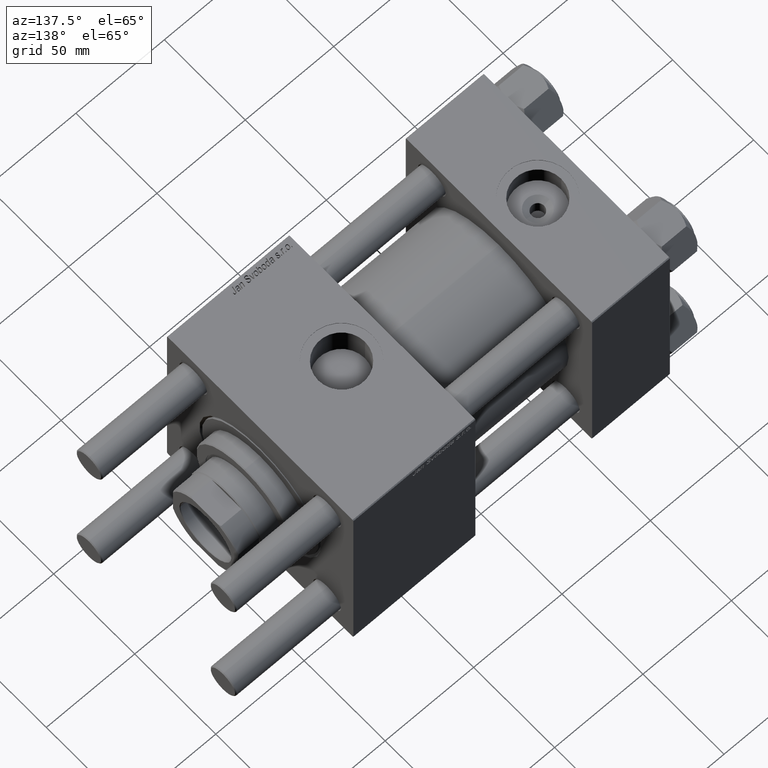
[diagram: clean part render]
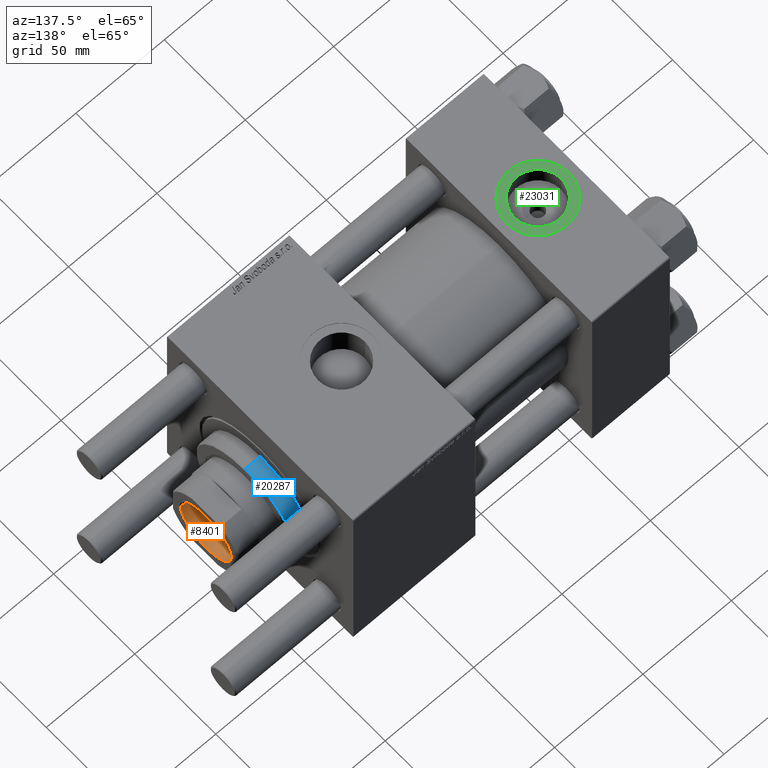
[diagram: same view with three faces highlighted in distinct colors, each labeled with its STEP entity id]
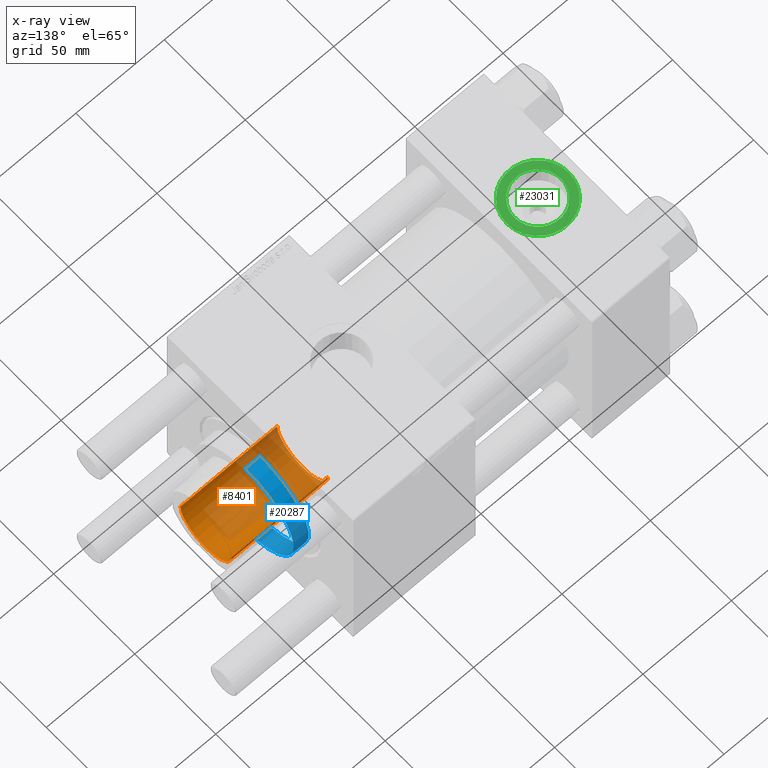
[diagram: x-ray of the same camera — body ghosted, the three highlighted faces saturated]
A machine part, auxiliary view with three faces highlighted in distinct colors.
The next image is the same camera in x-ray (body ghosted, the three faces saturated) — at least one of them is partly hidden behind the body in this view.
Their STEP definitions:

[orange] entity #8401 — the highlighted cylindrical surface (partial cylindrical patch) has radius 15.75 mm, axis along (1, 0, 0).
#65 = EDGE_CURVE ( 'NONE', #55164, #40417, #14133, .T. ) ;
#2132 = EDGE_CURVE ( 'NONE', #55445, #10898, #7767, .T. ) ;
#5208 = CARTESIAN_POINT ( 'NONE',  ( -15.74999999999999289, 1.928818708657080556E-15, 165.6999999999999886 ) ) ;
#6679 = LINE ( 'NONE', #46539, #9876 ) ;
#6819 = CARTESIAN_POINT ( 'NONE',  ( -15.74999999999999289, 1.928818708657080556E-15, 166.0000000000000000 ) ) ;
#7767 = CIRCLE ( 'NONE', #21579, 15.74999999999999289 ) ;
#7847 = DIRECTION ( 'NONE',  ( 1.000000000000000000, 0.000000000000000000, 0.000000000000000000 ) ) ;
#8141 = CYLINDRICAL_SURFACE ( 'NONE', #53975, 15.74999999999999289 ) ;
#8401 = ADVANCED_FACE ( 'NONE', ( #13056 ), #8141, .F. ) ;
#9876 = VECTOR ( 'NONE', #37022, 1000.000000000000000 ) ;
#10898 = VERTEX_POINT ( 'NONE', #5208 ) ;
#13056 = FACE_OUTER_BOUND ( 'NONE', #30278, .T. ) ;
#13132 = ORIENTED_EDGE ( 'NONE', *, *, #65, .F. ) ;
#14133 = CIRCLE ( 'NONE', #41776, 15.74999999999998934 ) ;
#21220 = DIRECTION ( 'NONE',  ( 1.000000000000000000, 0.000000000000000000, 0.000000000000000000 ) ) ;
#21579 = AXIS2_PLACEMENT_3D ( 'NONE', #28323, #54380, #31542 ) ;
#23010 = ORIENTED_EDGE ( 'NONE', *, *, #2132, .T. ) ;
#25259 = CARTESIAN_POINT ( 'NONE',  ( 0.000000000000000000, 0.000000000000000000, 111.0000000000000000 ) ) ;
#25723 = CARTESIAN_POINT ( 'NONE',  ( 15.74999999999998934, 0.000000000000000000, 111.0000000000000000 ) ) ;
#25746 = CARTESIAN_POINT ( 'NONE',  ( 0.000000000000000000, 0.000000000000000000, 166.0000000000000000 ) ) ;
#26228 = CARTESIAN_POINT ( 'NONE',  ( 15.74999999999999289, 0.000000000000000000, 165.6999999999999886 ) ) ;
#26571 = CARTESIAN_POINT ( 'NONE',  ( -15.74999999999998934, 1.928818708657080161E-15, 111.0000000000000000 ) ) ;
#28323 = CARTESIAN_POINT ( 'NONE',  ( 0.000000000000000000, 0.000000000000000000, 165.6999999999999886 ) ) ;
#30278 = EDGE_LOOP ( 'NONE', ( #39088, #13132, #37031, #23010 ) ) ;
#31542 = DIRECTION ( 'NONE',  ( 1.000000000000000000, 0.000000000000000000, 0.000000000000000000 ) ) ;
#34219 = DIRECTION ( 'NONE',  ( -0.000000000000000000, -0.000000000000000000, 1.000000000000000000 ) ) ;
#35929 = EDGE_CURVE ( 'NONE', #55164, #55445, #6679, .T. ) ;
#37022 = DIRECTION ( 'NONE',  ( -0.000000000000000000, -0.000000000000000000, 1.000000000000000000 ) ) ;
#37031 = ORIENTED_EDGE ( 'NONE', *, *, #35929, .T. ) ;
#38009 = DIRECTION ( 'NONE',  ( -0.000000000000000000, -0.000000000000000000, 1.000000000000000000 ) ) ;
#39088 = ORIENTED_EDGE ( 'NONE', *, *, #53069, .F. ) ;
#40417 = VERTEX_POINT ( 'NONE', #26571 ) ;
#41776 = AXIS2_PLACEMENT_3D ( 'NONE', #25259, #34219, #21220 ) ;
#46539 = CARTESIAN_POINT ( 'NONE',  ( 15.74999999999999289, 0.000000000000000000, 166.0000000000000000 ) ) ;
#51783 = DIRECTION ( 'NONE',  ( -0.000000000000000000, -0.000000000000000000, 1.000000000000000000 ) ) ;
#51793 = VECTOR ( 'NONE', #38009, 1000.000000000000000 ) ;
#53069 = EDGE_CURVE ( 'NONE', #40417, #10898, #55375, .T. ) ;
#53975 = AXIS2_PLACEMENT_3D ( 'NONE', #25746, #51783, #7847 ) ;
#54380 = DIRECTION ( 'NONE',  ( 0.000000000000000000, 0.000000000000000000, 1.000000000000000000 ) ) ;
#55164 = VERTEX_POINT ( 'NONE', #25723 ) ;
#55375 = LINE ( 'NONE', #6819, #51793 ) ;
#55445 = VERTEX_POINT ( 'NONE', #26228 ) ;

[blue] entity #20287 — the highlighted cylindrical surface (partial cylindrical patch) has radius 30 mm, axis along (-1, -0, 0).
#580 = CARTESIAN_POINT ( 'NONE',  ( -30.00000000000000000, 0.000000000000000000, 37.69999999999999574 ) ) ;
#775 = VERTEX_POINT ( 'NONE', #22215 ) ;
#1710 = CARTESIAN_POINT ( 'NONE',  ( 30.00000000000000000, 3.673940397442059178E-15, 37.69999999999999574 ) ) ;
#1751 = EDGE_CURVE ( 'NONE', #53515, #28008, #32663, .T. ) ;
#5035 = DIRECTION ( 'NONE',  ( 0.000000000000000000, 0.000000000000000000, -1.000000000000000000 ) ) ;
#5071 = CARTESIAN_POINT ( 'NONE',  ( 0.000000000000000000, 0.000000000000000000, 28.69999999999999929 ) ) ;
#9853 = EDGE_CURVE ( 'NONE', #28008, #775, #41296, .T. ) ;
#10865 = FACE_OUTER_BOUND ( 'NONE', #22404, .T. ) ;
#11154 = CYLINDRICAL_SURFACE ( 'NONE', #30313, 30.00000000000000000 ) ;
#11401 = ORIENTED_EDGE ( 'NONE', *, *, #56091, .F. ) ;
#13877 = ORIENTED_EDGE ( 'NONE', *, *, #1751, .T. ) ;
#14170 = LINE ( 'NONE', #580, #36181 ) ;
#19334 = DIRECTION ( 'NONE',  ( -0.000000000000000000, -0.000000000000000000, -1.000000000000000000 ) ) ;
#20287 = ADVANCED_FACE ( 'NONE', ( #10865 ), #11154, .T. ) ;
#20779 = VECTOR ( 'NONE', #19334, 1000.000000000000000 ) ;
#22215 = CARTESIAN_POINT ( 'NONE',  ( 30.00000000000000000, 3.673940397442059178E-15, 28.69999999999999929 ) ) ;
#22404 = EDGE_LOOP ( 'NONE', ( #13877, #31618, #32041, #11401 ) ) ;
#22507 = CARTESIAN_POINT ( 'NONE',  ( 30.00000000000000000, 3.673940397442059178E-15, 37.20000000000000284 ) ) ;
#22686 = DIRECTION ( 'NONE',  ( 0.000000000000000000, 0.000000000000000000, 1.000000000000000000 ) ) ;
#28008 = VERTEX_POINT ( 'NONE', #22507 ) ;
#28228 = CARTESIAN_POINT ( 'NONE',  ( -30.00000000000000000, 0.000000000000000000, 28.69999999999999929 ) ) ;
#29401 = CIRCLE ( 'NONE', #45096, 30.00000000000000000 ) ;
#30313 = AXIS2_PLACEMENT_3D ( 'NONE', #41202, #32529, #51027 ) ;
#30757 = DIRECTION ( 'NONE',  ( 1.000000000000000000, 0.000000000000000000, 0.000000000000000000 ) ) ;
#31618 = ORIENTED_EDGE ( 'NONE', *, *, #9853, .T. ) ;
#32041 = ORIENTED_EDGE ( 'NONE', *, *, #46896, .T. ) ;
#32529 = DIRECTION ( 'NONE',  ( -0.000000000000000000, -0.000000000000000000, -1.000000000000000000 ) ) ;
#32663 = CIRCLE ( 'NONE', #53002, 30.00000000000000000 ) ;
#34617 = VERTEX_POINT ( 'NONE', #28228 ) ;
#35536 = CARTESIAN_POINT ( 'NONE',  ( -30.00000000000000000, 0.000000000000000000, 37.20000000000000284 ) ) ;
#36181 = VECTOR ( 'NONE', #49414, 1000.000000000000000 ) ;
#40607 = DIRECTION ( 'NONE',  ( 1.000000000000000000, 0.000000000000000000, 0.000000000000000000 ) ) ;
#41202 = CARTESIAN_POINT ( 'NONE',  ( 0.000000000000000000, 0.000000000000000000, 37.69999999999999574 ) ) ;
#41296 = LINE ( 'NONE', #1710, #20779 ) ;
#45096 = AXIS2_PLACEMENT_3D ( 'NONE', #5071, #22686, #40607 ) ;
#46896 = EDGE_CURVE ( 'NONE', #775, #34617, #29401, .T. ) ;
#49414 = DIRECTION ( 'NONE',  ( -0.000000000000000000, -0.000000000000000000, -1.000000000000000000 ) ) ;
#51027 = DIRECTION ( 'NONE',  ( -1.000000000000000000, 0.000000000000000000, 0.000000000000000000 ) ) ;
#53002 = AXIS2_PLACEMENT_3D ( 'NONE', #56782, #5035, #30757 ) ;
#53515 = VERTEX_POINT ( 'NONE', #35536 ) ;
#56091 = EDGE_CURVE ( 'NONE', #53515, #34617, #14170, .T. ) ;
#56782 = CARTESIAN_POINT ( 'NONE',  ( 0.000000000000000000, 0.000000000000000000, 37.20000000000000284 ) ) ;

[green] entity #23031 — the highlighted planar face has unit normal (0, 0, 1).
#754 = EDGE_LOOP ( 'NONE', ( #38255, #55076 ) ) ;
#1457 = DIRECTION ( 'NONE',  ( 1.000000000000000000, 0.000000000000000000, 0.000000000000000000 ) ) ;
#1608 = CIRCLE ( 'NONE', #33003, 13.22000000000000242 ) ;
#5360 = EDGE_CURVE ( 'NONE', #56711, #52490, #9537, .T. ) ;
#6372 = CARTESIAN_POINT ( 'NONE',  ( 39.50000000000000000, -8.673617379884035472E-15, 57.30000000000000426 ) ) ;
#7243 = CIRCLE ( 'NONE', #39533, 17.50000000000000000 ) ;
#9537 = CIRCLE ( 'NONE', #32579, 13.22000000000000242 ) ;
#9594 = CARTESIAN_POINT ( 'NONE',  ( 4.499999999999997335, -6.530485481376167224E-15, 57.30000000000000426 ) ) ;
#11917 = DIRECTION ( 'NONE',  ( 1.000000000000000000, 0.000000000000000000, -0.000000000000000000 ) ) ;
#13019 = CARTESIAN_POINT ( 'NONE',  ( 22.00000000000000000, -8.673617379884035472E-15, 57.30000000000000426 ) ) ;
#14314 = EDGE_LOOP ( 'NONE', ( #15009, #39375 ) ) ;
#14766 = CARTESIAN_POINT ( 'NONE',  ( 22.00000000000000000, -8.673617379884035472E-15, 57.30000000000000426 ) ) ;
#15009 = ORIENTED_EDGE ( 'NONE', *, *, #41748, .T. ) ;
#16639 = VERTEX_POINT ( 'NONE', #6372 ) ;
#17229 = CIRCLE ( 'NONE', #20927, 17.50000000000000000 ) ;
#19837 = DIRECTION ( 'NONE',  ( 0.000000000000000000, 0.000000000000000000, 1.000000000000000000 ) ) ;
#20690 = DIRECTION ( 'NONE',  ( 1.000000000000000000, 0.000000000000000000, 0.000000000000000000 ) ) ;
#20927 = AXIS2_PLACEMENT_3D ( 'NONE', #20986, #46718, #38622 ) ;
#20986 = CARTESIAN_POINT ( 'NONE',  ( 22.00000000000000000, -8.673617379884035472E-15, 57.30000000000000426 ) ) ;
#21430 = FACE_BOUND ( 'NONE', #754, .T. ) ;
#21936 = AXIS2_PLACEMENT_3D ( 'NONE', #56134, #43107, #11917 ) ;
#23031 = ADVANCED_FACE ( 'NONE', ( #21430, #55847 ), #52088, .T. ) ;
#27129 = DIRECTION ( 'NONE',  ( 0.000000000000000000, 0.000000000000000000, 1.000000000000000000 ) ) ;
#31306 = CARTESIAN_POINT ( 'NONE',  ( 8.779999999999994031, -7.054634311411234321E-15, 57.30000000000000426 ) ) ;
#32579 = AXIS2_PLACEMENT_3D ( 'NONE', #42089, #19837, #20690 ) ;
#32991 = VERTEX_POINT ( 'NONE', #9594 ) ;
#33003 = AXIS2_PLACEMENT_3D ( 'NONE', #13019, #27129, #35242 ) ;
#34686 = EDGE_CURVE ( 'NONE', #32991, #16639, #17229, .T. ) ;
#35242 = DIRECTION ( 'NONE',  ( 1.000000000000000000, 0.000000000000000000, 0.000000000000000000 ) ) ;
#38255 = ORIENTED_EDGE ( 'NONE', *, *, #39483, .F. ) ;
#38622 = DIRECTION ( 'NONE',  ( 1.000000000000000000, 0.000000000000000000, 0.000000000000000000 ) ) ;
#39375 = ORIENTED_EDGE ( 'NONE', *, *, #34686, .T. ) ;
#39483 = EDGE_CURVE ( 'NONE', #52490, #56711, #1608, .T. ) ;
#39533 = AXIS2_PLACEMENT_3D ( 'NONE', #14766, #42679, #1457 ) ;
#41748 = EDGE_CURVE ( 'NONE', #16639, #32991, #7243, .T. ) ;
#42089 = CARTESIAN_POINT ( 'NONE',  ( 22.00000000000000000, -8.673617379884035472E-15, 57.30000000000000426 ) ) ;
#42679 = DIRECTION ( 'NONE',  ( 0.000000000000000000, 0.000000000000000000, 1.000000000000000000 ) ) ;
#42775 = CARTESIAN_POINT ( 'NONE',  ( 35.21999999999999886, -8.673617379884035472E-15, 57.30000000000000426 ) ) ;
#43107 = DIRECTION ( 'NONE',  ( 0.000000000000000000, 0.000000000000000000, 1.000000000000000000 ) ) ;
#46718 = DIRECTION ( 'NONE',  ( 0.000000000000000000, 0.000000000000000000, 1.000000000000000000 ) ) ;
#52088 = PLANE ( 'NONE',  #21936 ) ;
#52490 = VERTEX_POINT ( 'NONE', #42775 ) ;
#55076 = ORIENTED_EDGE ( 'NONE', *, *, #5360, .F. ) ;
#55847 = FACE_OUTER_BOUND ( 'NONE', #14314, .T. ) ;
#56134 = CARTESIAN_POINT ( 'NONE',  ( 22.00000000000000000, -8.673617379884035472E-15, 57.30000000000000426 ) ) ;
#56711 = VERTEX_POINT ( 'NONE', #31306 ) ;